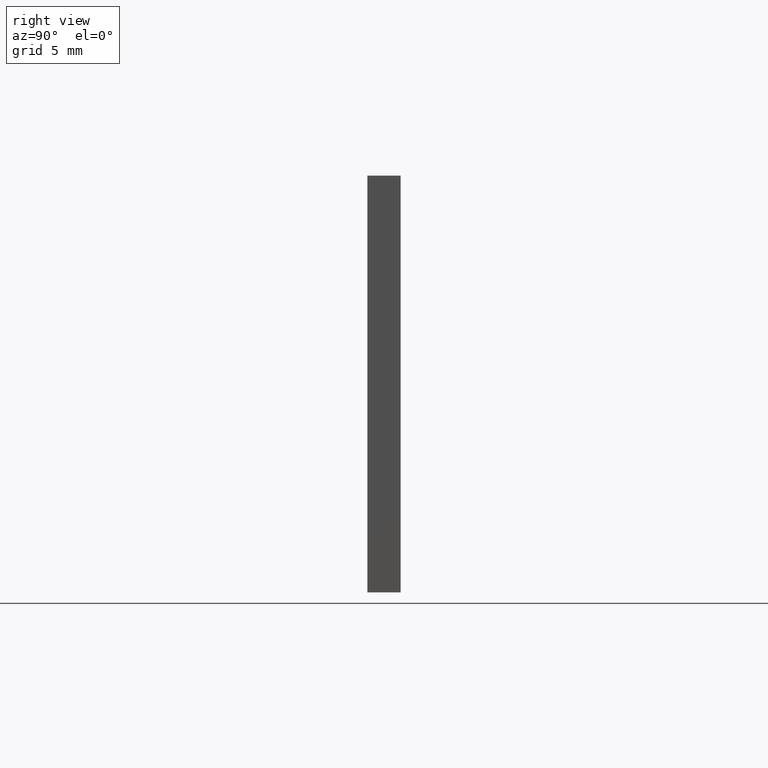
[diagram: clean part render]
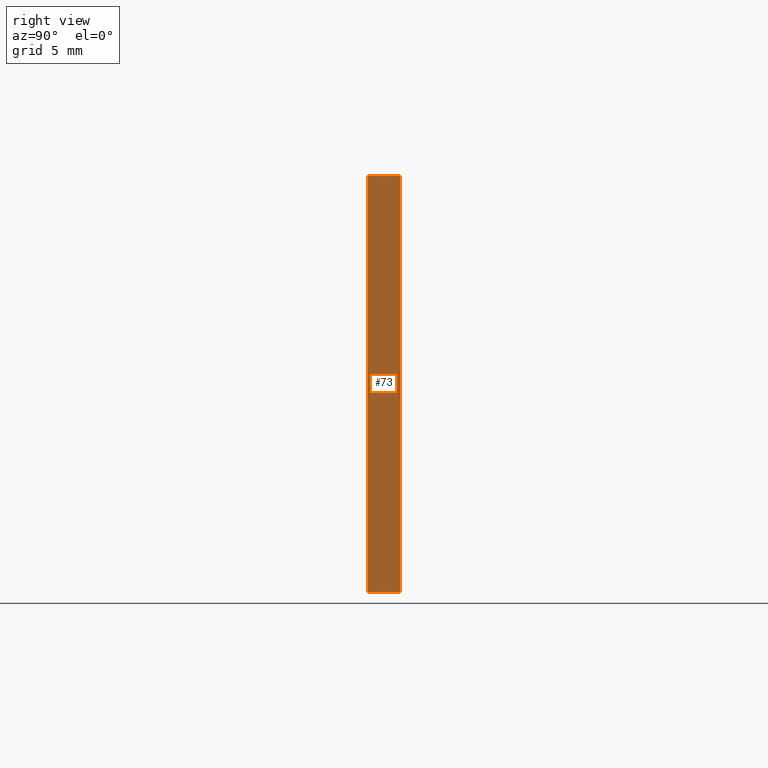
[diagram: same view with one face highlighted and labeled with its STEP entity id]
A machine part, right view. The second image highlights one B-rep face of the part: STEP entity #73.
In plain terms, the highlighted planar face has unit normal (-1, 0, 0).
Its self-contained STEP definition (entity closure, byte-faithful):
#3 = VERTEX_POINT ( 'NONE', #62 ) ;
#7 = DIRECTION ( 'NONE',  ( -1.000000000000000000, 0.0000000000000000000, 2.775557561562891400E-016 ) ) ;
#24 = LINE ( 'NONE', #72, #107 ) ;
#26 = DIRECTION ( 'NONE',  ( -2.775557561562891400E-016, -0.0000000000000000000, -1.000000000000000000 ) ) ;
#36 = LINE ( 'NONE', #60, #110 ) ;
#40 = PLANE ( 'NONE',  #123 ) ;
#52 = EDGE_LOOP ( 'NONE', ( #85, #109, #185, #139 ) ) ;
#60 = CARTESIAN_POINT ( 'NONE',  ( 17.99999999999999600, 2.000000000000000000, -12.49999999999999800 ) ) ;
#62 = CARTESIAN_POINT ( 'NONE',  ( 17.99999999999999600, 2.000000000000000000, -12.49999999999999800 ) ) ;
#72 = CARTESIAN_POINT ( 'NONE',  ( 18.00000000000000400, 2.000000000000000000, 12.50000000000000200 ) ) ;
#73 = ADVANCED_FACE ( 'NONE', ( #93 ), #40, .F. ) ;
#78 = VECTOR ( 'NONE', #163, 1000.000000000000000 ) ;
#85 = ORIENTED_EDGE ( 'NONE', *, *, #150, .T. ) ;
#86 = DIRECTION ( 'NONE',  ( -0.0000000000000000000, -1.000000000000000000, -0.0000000000000000000 ) ) ;
#93 = FACE_OUTER_BOUND ( 'NONE', #52, .T. ) ;
#95 = VERTEX_POINT ( 'NONE', #177 ) ;
#100 = CARTESIAN_POINT ( 'NONE',  ( 17.99999999999999600, 2.000000000000000000, -12.49999999999999800 ) ) ;
#107 = VECTOR ( 'NONE', #86, 1000.000000000000000 ) ;
#109 = ORIENTED_EDGE ( 'NONE', *, *, #131, .F. ) ;
#110 = VECTOR ( 'NONE', #148, 1000.000000000000000 ) ;
#113 = DIRECTION ( 'NONE',  ( 2.775557561562891400E-016, 0.0000000000000000000, 1.000000000000000000 ) ) ;
#119 = EDGE_CURVE ( 'NONE', #152, #3, #193, .T. ) ;
#123 = AXIS2_PLACEMENT_3D ( 'NONE', #100, #7, #113 ) ;
#124 = VERTEX_POINT ( 'NONE', #159 ) ;
#129 = CARTESIAN_POINT ( 'NONE',  ( 17.99999999999999600, 2.000000000000000000, -12.49999999999999800 ) ) ;
#131 = EDGE_CURVE ( 'NONE', #3, #95, #36, .T. ) ;
#139 = ORIENTED_EDGE ( 'NONE', *, *, #158, .T. ) ;
#148 = DIRECTION ( 'NONE',  ( -0.0000000000000000000, -1.000000000000000000, -0.0000000000000000000 ) ) ;
#150 = EDGE_CURVE ( 'NONE', #124, #95, #201, .T. ) ;
#152 = VERTEX_POINT ( 'NONE', #179 ) ;
#158 = EDGE_CURVE ( 'NONE', #152, #124, #24, .T. ) ;
#159 = CARTESIAN_POINT ( 'NONE',  ( 18.00000000000000400, 0.0000000000000000000, 12.50000000000000200 ) ) ;
#163 = DIRECTION ( 'NONE',  ( -2.775557561562891400E-016, -0.0000000000000000000, -1.000000000000000000 ) ) ;
#177 = CARTESIAN_POINT ( 'NONE',  ( 17.99999999999999600, 0.0000000000000000000, -12.49999999999999800 ) ) ;
#179 = CARTESIAN_POINT ( 'NONE',  ( 18.00000000000000400, 2.000000000000000000, 12.50000000000000200 ) ) ;
#185 = ORIENTED_EDGE ( 'NONE', *, *, #119, .F. ) ;
#187 = VECTOR ( 'NONE', #26, 1000.000000000000000 ) ;
#193 = LINE ( 'NONE', #129, #187 ) ;
#196 = CARTESIAN_POINT ( 'NONE',  ( 17.99999999999999600, 0.0000000000000000000, -12.49999999999999800 ) ) ;
#201 = LINE ( 'NONE', #196, #78 ) ;